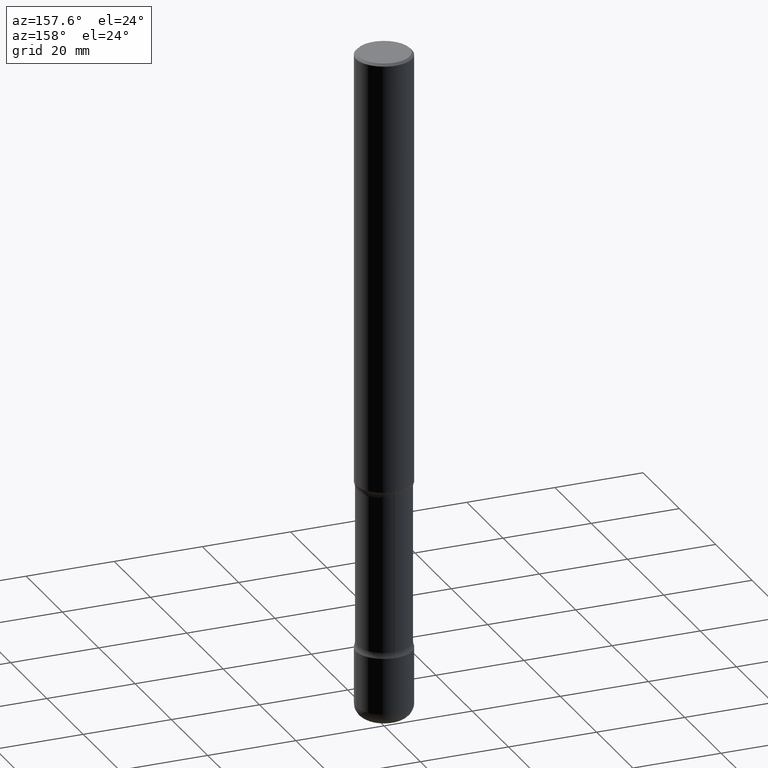
[diagram: clean part render]
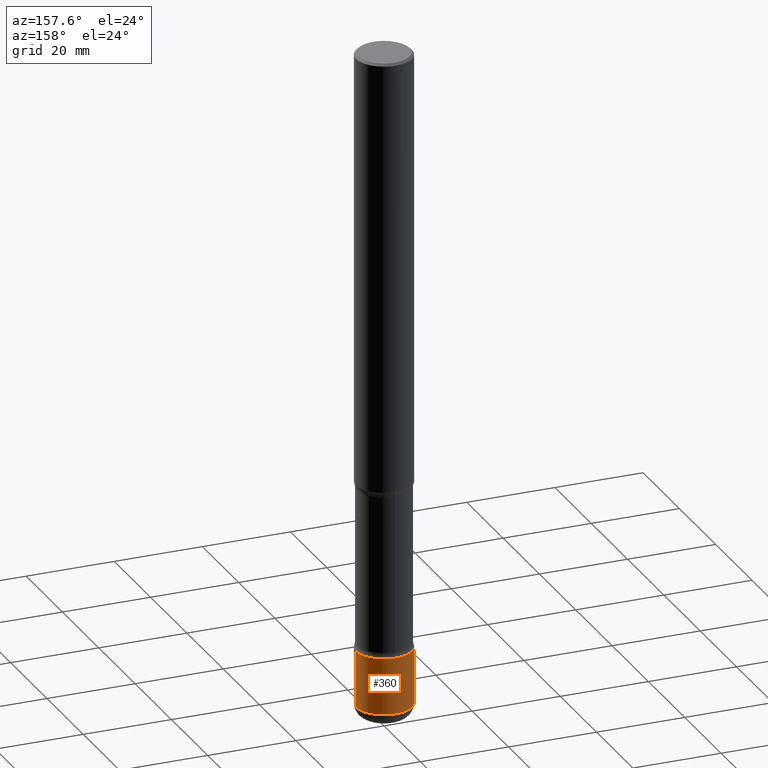
[diagram: same view with one face highlighted and labeled with its STEP entity id]
A machine part, auxiliary view. The second image highlights one B-rep face of the part: STEP entity #360.
In plain terms, the highlighted cylindrical surface (edge-blend (fillet) strip) has radius 6.35 mm, axis along (-0, 0, 1).
Its self-contained STEP definition (entity closure, byte-faithful):
#7 = CARTESIAN_POINT ( 'NONE',  ( 0.2499999999999996947, -2.227565094181926275E-14, -5.880000000000000782 ) ) ;
#54 = DIRECTION ( 'NONE',  ( 1.000000000000000000, -6.982962677686262766E-15, 0.000000000000000000 ) ) ;
#56 = VERTEX_POINT ( 'NONE', #162 ) ;
#79 = AXIS2_PLACEMENT_3D ( 'NONE', #461, #706, #317 ) ;
#103 = AXIS2_PLACEMENT_3D ( 'NONE', #299, #357, #546 ) ;
#106 = EDGE_CURVE ( 'NONE', #732, #56, #771, .T. ) ;
#110 = ORIENTED_EDGE ( 'NONE', *, *, #573, .F. ) ;
#122 = CARTESIAN_POINT ( 'NONE',  ( 1.437935658036860328E-28, -2.052991027239769923E-14, -5.880000000000000782 ) ) ;
#141 = EDGE_LOOP ( 'NONE', ( #277, #272, #110, #356 ) ) ;
#160 = DIRECTION ( 'NONE',  ( -2.445468806185136877E-29, 3.491481338843145188E-15, 1.000000000000000000 ) ) ;
#162 = CARTESIAN_POINT ( 'NONE',  ( 0.2500000000000000000, -2.051245286570347630E-14, -5.375000000000000888 ) ) ;
#198 = FACE_OUTER_BOUND ( 'NONE', #141, .T. ) ;
#208 = CYLINDRICAL_SURFACE ( 'NONE', #79, 0.2500000000000000000 ) ;
#272 = ORIENTED_EDGE ( 'NONE', *, *, #662, .T. ) ;
#274 = VECTOR ( 'NONE', #436, 39.37007874015748143 ) ;
#277 = ORIENTED_EDGE ( 'NONE', *, *, #644, .T. ) ;
#299 = CARTESIAN_POINT ( 'NONE',  ( 1.314439483324511145E-28, -1.876671219628190963E-14, -5.375000000000000888 ) ) ;
#317 = DIRECTION ( 'NONE',  ( 1.000000000000000000, -6.982962677686266711E-15, 4.876176775795935793E-29 ) ) ;
#356 = ORIENTED_EDGE ( 'NONE', *, *, #106, .F. ) ;
#357 = DIRECTION ( 'NONE',  ( -2.445468806185136597E-29, 3.491481338843145583E-15, 1.000000000000000000 ) ) ;
#360 = ADVANCED_FACE ( 'NONE', ( #198 ), #208, .T. ) ;
#367 = DIRECTION ( 'NONE',  ( -2.445468806185136597E-29, 3.491481338843145583E-15, 1.000000000000000000 ) ) ;
#394 = VERTEX_POINT ( 'NONE', #522 ) ;
#404 = CIRCLE ( 'NONE', #444, 0.2500000000000000000 ) ;
#436 = DIRECTION ( 'NONE',  ( -2.445468806185136877E-29, 3.491481338843145188E-15, 1.000000000000000000 ) ) ;
#444 = AXIS2_PLACEMENT_3D ( 'NONE', #122, #367, #54 ) ;
#459 = CIRCLE ( 'NONE', #103, 0.2500000000000000000 ) ;
#461 = CARTESIAN_POINT ( 'NONE',  ( 0.000000000000000000, 0.000000000000000000, 0.000000000000000000 ) ) ;
#522 = CARTESIAN_POINT ( 'NONE',  ( -0.2499999999999996947, -1.875355343299744876E-14, -5.880000000000000782 ) ) ;
#546 = DIRECTION ( 'NONE',  ( 1.000000000000000000, -6.982962677686262766E-15, 0.000000000000000000 ) ) ;
#573 = EDGE_CURVE ( 'NONE', #56, #675, #459, .T. ) ;
#611 = LINE ( 'NONE', #794, #274 ) ;
#614 = CARTESIAN_POINT ( 'NONE',  ( -0.2500000000000000000, -1.787195439493955396E-14, -5.375000000000000888 ) ) ;
#644 = EDGE_CURVE ( 'NONE', #732, #394, #404, .T. ) ;
#662 = EDGE_CURVE ( 'NONE', #394, #675, #611, .T. ) ;
#675 = VERTEX_POINT ( 'NONE', #614 ) ;
#706 = DIRECTION ( 'NONE',  ( -2.445468806185136597E-29, 3.491481338843145583E-15, 1.000000000000000000 ) ) ;
#712 = CARTESIAN_POINT ( 'NONE',  ( 0.2500000000000000000, -1.745740669421566678E-15, 1.219044193948983948E-29 ) ) ;
#732 = VERTEX_POINT ( 'NONE', #7 ) ;
#747 = VECTOR ( 'NONE', #160, 39.37007874015748143 ) ;
#771 = LINE ( 'NONE', #712, #747 ) ;
#794 = CARTESIAN_POINT ( 'NONE',  ( -0.2500000000000000000, 1.776356839400250465E-15, -1.229733772563726445E-29 ) ) ;